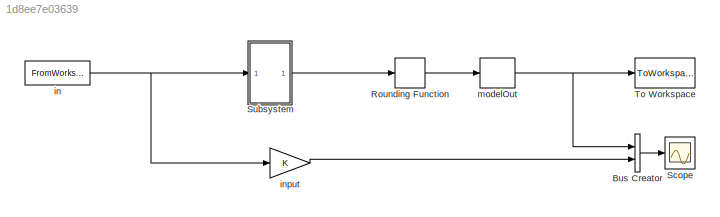
MODEL slx_1d8ee7e03639
KIND model
CONFIG AbsTol = auto
CONFIG EnableMultiTasking = off
CONFIG FixedStep = auto
CONFIG MaxStep = auto
CONFIG MinStep = auto
CONFIG RelTol = 1e-3
CONFIG SampleTimeConstraint = Unconstrained
CONFIG Solver = ode15s
CONFIG SolverName = ode15s
CONFIG StartTime = 0.0
CONFIG StopTime = 2.0015
BLOCK [BusCreator] Bus Creator
  DisplayOption = bar
  InheritFromInputs = on
  Inputs = 2
  Ports = [2, 1]
BLOCK [Rounding] Rounding Function
  Operator = round
BLOCK [Scope] Scope
  NumInputPorts = 1
  Ports = [1]
  ScopeSpecificationString = Simulink.scopes.TimeScopeBlockCfg('CurrentConfiguration', extmgr.ConfigurationSet(extmgr.Configuration('Core','General UI',true),extmgr.Configuration('Core','Source UI',true),extmgr.Configuration('Sources','WiredSimulink',true),extmgr.Configuration('Visuals','Time Domain',true,'SerializedDisplays',{struct('MinYLimReal','-1307.375','MaxYLimReal','1776.375','YLabelReal','','MinYLimMag','  0.00000','...<+1418ch>
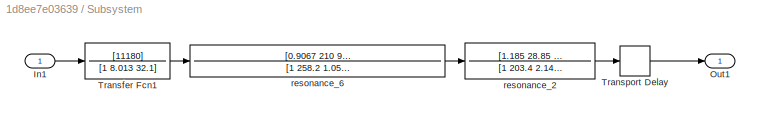
BLOCK [SubSystem] Subsystem
  Ports = [1, 1]
  RequestExecContextInheritance = off
  Variant = off
BLOCK [Inport] Subsystem/In1
  IconDisplay = Port number
BLOCK [Outport] Subsystem/Out1
  IconDisplay = Port number
BLOCK [TransferFcn] Subsystem/Transfer Fcn1
  Denominator = [1 8.013 32.1]
  Numerator = [11180]
BLOCK [TransportDelay] Subsystem/Transport Delay
  DelayTime = 0.001
  Ports = [1, 1]
BLOCK [TransferFcn] Subsystem/resonance_2
  Denominator = [1 203.4 2.142e7]
  Numerator = [1.185 28.85 2.439e7]
BLOCK [TransferFcn] Subsystem/resonance_6
  Denominator = [1 258.2 1.054e7 1.323e9 2.575e13]
  Numerator = [0.9067 210 9.034e6 1.106e9 2.187e13]
BLOCK [ToWorkspace] To Workspace
  FixptAsFi = on
  MaxDataPoints = inf
  Ports = [1]
  SampleTime = 0.00025
  Save2DSignal = 3-D array (concatenate along third dimension)
  VariableName = simout
BLOCK [FromWorkspace] in
  SampleTime = 0.00025
  VariableName = M
  ZeroCross = on
BLOCK [Gain] input
  OutDataTypeStr = Inherit: Inherit via internal rule
  ParamDataTypeStr = Inherit: Inherit via internal rule
  SaturateOnIntegerOverflow = off
BLOCK [ZeroOrderHold] modelOut
  SampleTime = 0.00025
LINE Bus Creator:1 -> Scope:1
LINE Rounding Function:1 -> modelOut:1
LINE Subsystem/In1:1 -> Subsystem/Transfer Fcn1:1
LINE Subsystem/Transfer Fcn1:1 -> Subsystem/resonance_6:1
LINE Subsystem/Transport Delay:1 -> Subsystem/Out1:1
LINE Subsystem/resonance_2:1 -> Subsystem/Transport Delay:1
LINE Subsystem/resonance_6:1 -> Subsystem/resonance_2:1
LINE Subsystem:1 -> Rounding Function:1
NET in:1 -> Subsystem:1, input:1
LINE input:1 -> Bus Creator:2
NET modelOut:1 -> Bus Creator:1, To Workspace:1
note: NET lines group one-source signal fan-out (src -> all destinations, sorted); 1:1 wires keep LINE
